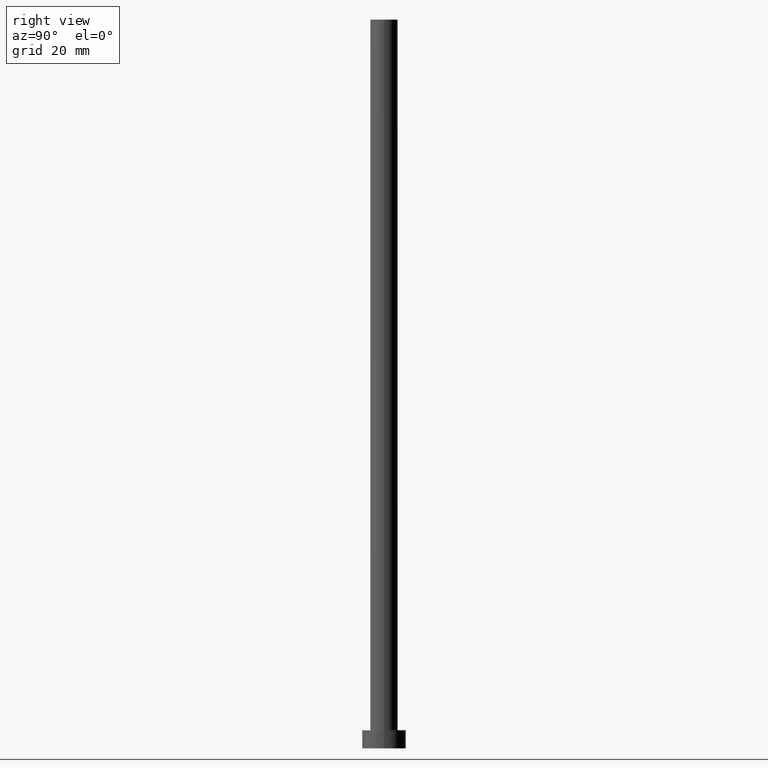
[diagram: clean part render]
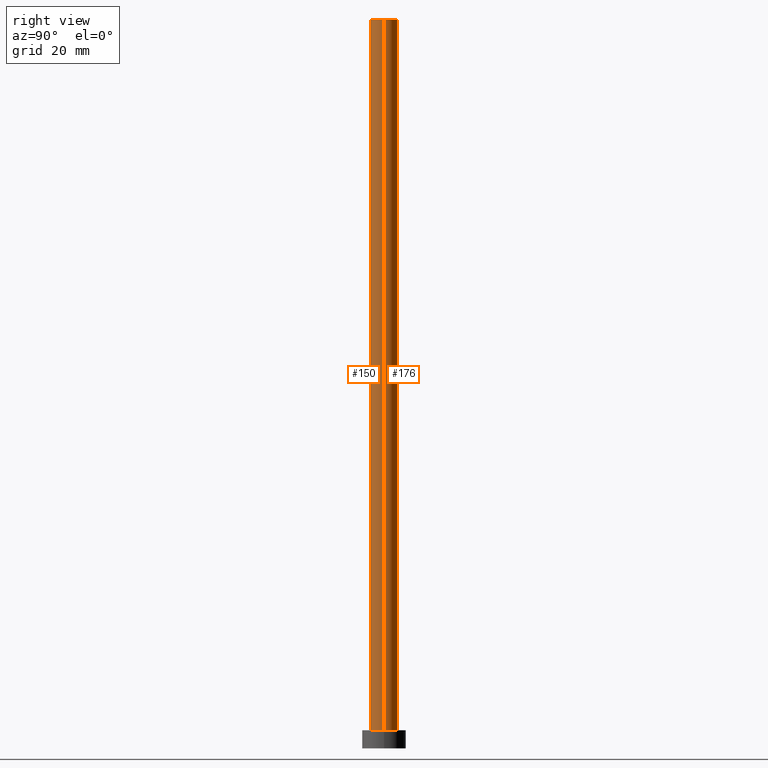
[diagram: same view with one multi-face feature highlighted, each face labeled with its STEP entity id]
A machine part, right view. The highlighted faces form ONE feature: a constant-radius fillet chain: 2 tangent blend faces with common blend radius 3.75 mm. The faces share edges in the B-rep.
Their STEP definitions:
[1] entity #150 (Cylinder):
#8 = DIRECTION ( 'NONE',  ( -0.000000000000000000, -0.000000000000000000, -1.000000000000000000 ) ) ;
#14 = DIRECTION ( 'NONE',  ( 1.000000000000000000, 0.000000000000000000, 0.000000000000000000 ) ) ;
#15 = CARTESIAN_POINT ( 'NONE',  ( 0.000000000000000000, 0.000000000000000000, 200.0000000000000000 ) ) ;
#16 = CIRCLE ( 'NONE', #49, 3.750000000000000000 ) ;
#27 = CARTESIAN_POINT ( 'NONE',  ( 3.750000000000000000, 4.592425496802573972E-16, 5.000000000000000000 ) ) ;
#29 = EDGE_CURVE ( 'NONE', #51, #226, #249, .T. ) ;
#32 = ORIENTED_EDGE ( 'NONE', *, *, #29, .F. ) ;
#40 = VECTOR ( 'NONE', #109, 1000.000000000000000 ) ;
#42 = EDGE_CURVE ( 'NONE', #51, #77, #95, .T. ) ;
#49 = AXIS2_PLACEMENT_3D ( 'NONE', #192, #172, #14 ) ;
#51 = VERTEX_POINT ( 'NONE', #166 ) ;
#54 = VECTOR ( 'NONE', #8, 1000.000000000000000 ) ;
#59 = VERTEX_POINT ( 'NONE', #27 ) ;
#65 = CARTESIAN_POINT ( 'NONE',  ( 0.000000000000000000, 0.000000000000000000, 200.0000000000000000 ) ) ;
#73 = CARTESIAN_POINT ( 'NONE',  ( 3.750000000000000000, 4.592425496802573972E-16, 200.0000000000000000 ) ) ;
#77 = VERTEX_POINT ( 'NONE', #86 ) ;
#85 = DIRECTION ( 'NONE',  ( -0.000000000000000000, -0.000000000000000000, -1.000000000000000000 ) ) ;
#86 = CARTESIAN_POINT ( 'NONE',  ( -3.750000000000000000, 0.000000000000000000, 5.000000000000000000 ) ) ;
#90 = EDGE_CURVE ( 'NONE', #77, #59, #16, .T. ) ;
#95 = LINE ( 'NONE', #185, #54 ) ;
#96 = DIRECTION ( 'NONE',  ( 0.000000000000000000, 0.000000000000000000, 1.000000000000000000 ) ) ;
#109 = DIRECTION ( 'NONE',  ( -0.000000000000000000, -0.000000000000000000, -1.000000000000000000 ) ) ;
#113 = EDGE_CURVE ( 'NONE', #226, #59, #148, .T. ) ;
#122 = ORIENTED_EDGE ( 'NONE', *, *, #90, .T. ) ;
#126 = FACE_OUTER_BOUND ( 'NONE', #165, .T. ) ;
#131 = DIRECTION ( 'NONE',  ( -1.000000000000000000, 0.000000000000000000, 0.000000000000000000 ) ) ;
#136 = AXIS2_PLACEMENT_3D ( 'NONE', #65, #96, #189 ) ;
#146 = ORIENTED_EDGE ( 'NONE', *, *, #113, .F. ) ;
#148 = LINE ( 'NONE', #73, #40 ) ;
#150 = ADVANCED_FACE ( 'NONE', ( #126 ), #168, .T. ) ;
#161 = ORIENTED_EDGE ( 'NONE', *, *, #42, .T. ) ;
#165 = EDGE_LOOP ( 'NONE', ( #146, #32, #161, #122 ) ) ;
#166 = CARTESIAN_POINT ( 'NONE',  ( -3.750000000000000000, 0.000000000000000000, 200.0000000000000000 ) ) ;
#168 = CYLINDRICAL_SURFACE ( 'NONE', #208, 3.750000000000000000 ) ;
#172 = DIRECTION ( 'NONE',  ( 0.000000000000000000, 0.000000000000000000, 1.000000000000000000 ) ) ;
#178 = CARTESIAN_POINT ( 'NONE',  ( 3.750000000000000000, 4.592425496802573972E-16, 200.0000000000000000 ) ) ;
#185 = CARTESIAN_POINT ( 'NONE',  ( -3.750000000000000000, 0.000000000000000000, 200.0000000000000000 ) ) ;
#189 = DIRECTION ( 'NONE',  ( 1.000000000000000000, 0.000000000000000000, 0.000000000000000000 ) ) ;
#192 = CARTESIAN_POINT ( 'NONE',  ( 0.000000000000000000, 0.000000000000000000, 5.000000000000000000 ) ) ;
#208 = AXIS2_PLACEMENT_3D ( 'NONE', #15, #85, #131 ) ;
#226 = VERTEX_POINT ( 'NONE', #178 ) ;
#249 = CIRCLE ( 'NONE', #136, 3.750000000000000000 ) ;
[2] entity #176 (Cylinder):
#8 = DIRECTION ( 'NONE',  ( -0.000000000000000000, -0.000000000000000000, -1.000000000000000000 ) ) ;
#13 = DIRECTION ( 'NONE',  ( 1.000000000000000000, 0.000000000000000000, 0.000000000000000000 ) ) ;
#17 = CYLINDRICAL_SURFACE ( 'NONE', #108, 3.750000000000000000 ) ;
#23 = EDGE_CURVE ( 'NONE', #59, #77, #97, .T. ) ;
#27 = CARTESIAN_POINT ( 'NONE',  ( 3.750000000000000000, 4.592425496802573972E-16, 5.000000000000000000 ) ) ;
#28 = DIRECTION ( 'NONE',  ( 0.000000000000000000, 0.000000000000000000, 1.000000000000000000 ) ) ;
#40 = VECTOR ( 'NONE', #109, 1000.000000000000000 ) ;
#42 = EDGE_CURVE ( 'NONE', #51, #77, #95, .T. ) ;
#51 = VERTEX_POINT ( 'NONE', #166 ) ;
#54 = VECTOR ( 'NONE', #8, 1000.000000000000000 ) ;
#59 = VERTEX_POINT ( 'NONE', #27 ) ;
#73 = CARTESIAN_POINT ( 'NONE',  ( 3.750000000000000000, 4.592425496802573972E-16, 200.0000000000000000 ) ) ;
#77 = VERTEX_POINT ( 'NONE', #86 ) ;
#86 = CARTESIAN_POINT ( 'NONE',  ( -3.750000000000000000, 0.000000000000000000, 5.000000000000000000 ) ) ;
#95 = LINE ( 'NONE', #185, #54 ) ;
#97 = CIRCLE ( 'NONE', #129, 3.750000000000000000 ) ;
#105 = DIRECTION ( 'NONE',  ( -1.000000000000000000, 0.000000000000000000, 0.000000000000000000 ) ) ;
#106 = EDGE_CURVE ( 'NONE', #226, #51, #194, .T. ) ;
#108 = AXIS2_PLACEMENT_3D ( 'NONE', #112, #231, #105 ) ;
#109 = DIRECTION ( 'NONE',  ( -0.000000000000000000, -0.000000000000000000, -1.000000000000000000 ) ) ;
#112 = CARTESIAN_POINT ( 'NONE',  ( 0.000000000000000000, 0.000000000000000000, 200.0000000000000000 ) ) ;
#113 = EDGE_CURVE ( 'NONE', #226, #59, #148, .T. ) ;
#120 = ORIENTED_EDGE ( 'NONE', *, *, #113, .T. ) ;
#129 = AXIS2_PLACEMENT_3D ( 'NONE', #220, #28, #13 ) ;
#147 = AXIS2_PLACEMENT_3D ( 'NONE', #254, #169, #215 ) ;
#148 = LINE ( 'NONE', #73, #40 ) ;
#151 = FACE_OUTER_BOUND ( 'NONE', #225, .T. ) ;
#166 = CARTESIAN_POINT ( 'NONE',  ( -3.750000000000000000, 0.000000000000000000, 200.0000000000000000 ) ) ;
#169 = DIRECTION ( 'NONE',  ( 0.000000000000000000, 0.000000000000000000, 1.000000000000000000 ) ) ;
#176 = ADVANCED_FACE ( 'NONE', ( #151 ), #17, .T. ) ;
#178 = CARTESIAN_POINT ( 'NONE',  ( 3.750000000000000000, 4.592425496802573972E-16, 200.0000000000000000 ) ) ;
#185 = CARTESIAN_POINT ( 'NONE',  ( -3.750000000000000000, 0.000000000000000000, 200.0000000000000000 ) ) ;
#194 = CIRCLE ( 'NONE', #147, 3.750000000000000000 ) ;
#200 = ORIENTED_EDGE ( 'NONE', *, *, #106, .F. ) ;
#204 = ORIENTED_EDGE ( 'NONE', *, *, #42, .F. ) ;
#215 = DIRECTION ( 'NONE',  ( 1.000000000000000000, 0.000000000000000000, 0.000000000000000000 ) ) ;
#220 = CARTESIAN_POINT ( 'NONE',  ( 0.000000000000000000, 0.000000000000000000, 5.000000000000000000 ) ) ;
#225 = EDGE_LOOP ( 'NONE', ( #200, #120, #241, #204 ) ) ;
#226 = VERTEX_POINT ( 'NONE', #178 ) ;
#231 = DIRECTION ( 'NONE',  ( -0.000000000000000000, -0.000000000000000000, -1.000000000000000000 ) ) ;
#241 = ORIENTED_EDGE ( 'NONE', *, *, #23, .T. ) ;
#254 = CARTESIAN_POINT ( 'NONE',  ( 0.000000000000000000, 0.000000000000000000, 200.0000000000000000 ) ) ;